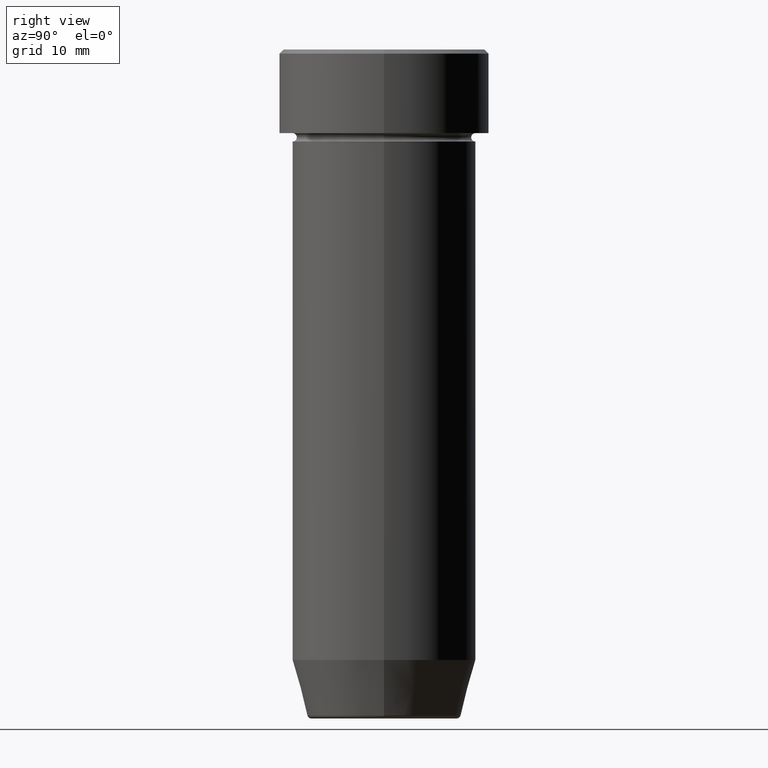
[diagram: clean part render]
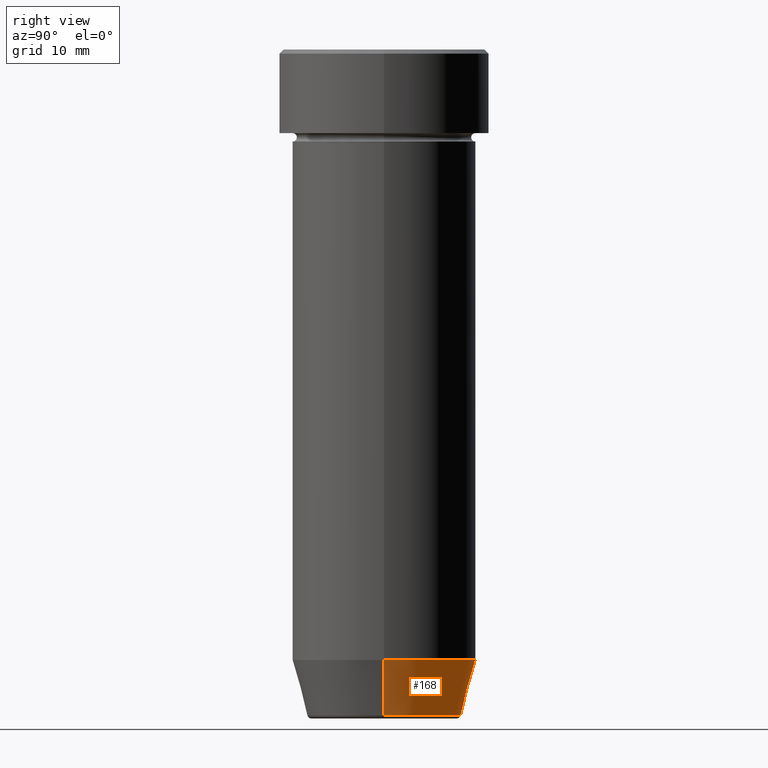
[diagram: same view with one face highlighted and labeled with its STEP entity id]
A machine part, right view. The second image highlights one B-rep face of the part: STEP entity #168.
In plain terms, the highlighted conical surface has half-angle 15 deg.
Its self-contained STEP definition (entity closure, byte-faithful):
#9 = DIRECTION ( 'NONE',  ( -0.000000000000000000, -0.000000000000000000, 1.000000000000000000 ) ) ;
#42 = ORIENTED_EDGE ( 'NONE', *, *, #104, .F. ) ;
#43 = CARTESIAN_POINT ( 'NONE',  ( -9.223655072137194821, 1.238341722557647399E-15, -79.62940952255127058 ) ) ;
#50 = CARTESIAN_POINT ( 'NONE',  ( 11.00000000000000000, 0.000000000000000000, -73.00000000000000000 ) ) ;
#54 = VECTOR ( 'NONE', #555, 1000.000000000000114 ) ;
#56 = DIRECTION ( 'NONE',  ( -0.000000000000000000, -0.000000000000000000, 1.000000000000000000 ) ) ;
#85 = LINE ( 'NONE', #380, #276 ) ;
#104 = EDGE_CURVE ( 'NONE', #459, #546, #194, .T. ) ;
#112 = ORIENTED_EDGE ( 'NONE', *, *, #488, .T. ) ;
#141 = ORIENTED_EDGE ( 'NONE', *, *, #439, .F. ) ;
#154 = CIRCLE ( 'NONE', #492, 9.223655072137194821 ) ;
#155 = EDGE_CURVE ( 'NONE', #459, #549, #154, .T. ) ;
#159 = CONICAL_SURFACE ( 'NONE', #478, 9.124355652982140796, 0.2617993877991491303 ) ;
#168 = ADVANCED_FACE ( 'NONE', ( #384 ), #159, .T. ) ;
#187 = CARTESIAN_POINT ( 'NONE',  ( 9.223655072137194821, 0.000000000000000000, -79.62940952255127058 ) ) ;
#190 = CARTESIAN_POINT ( 'NONE',  ( 0.000000000000000000, 0.000000000000000000, -73.00000000000000000 ) ) ;
#194 = LINE ( 'NONE', #280, #54 ) ;
#239 = DIRECTION ( 'NONE',  ( -1.000000000000000000, 0.000000000000000000, 0.000000000000000000 ) ) ;
#242 = DIRECTION ( 'NONE',  ( 1.000000000000000000, 0.000000000000000000, 0.000000000000000000 ) ) ;
#244 = AXIS2_PLACEMENT_3D ( 'NONE', #190, #9, #501 ) ;
#276 = VECTOR ( 'NONE', #369, 1000.000000000000114 ) ;
#280 = CARTESIAN_POINT ( 'NONE',  ( 9.124355652982140796, 0.000000000000000000, -80.00000000000000000 ) ) ;
#289 = DIRECTION ( 'NONE',  ( -0.000000000000000000, -0.000000000000000000, 1.000000000000000000 ) ) ;
#292 = CARTESIAN_POINT ( 'NONE',  ( 0.000000000000000000, 0.000000000000000000, -80.00000000000000000 ) ) ;
#306 = VERTEX_POINT ( 'NONE', #433 ) ;
#369 = DIRECTION ( 'NONE',  ( -0.2588190451025205174, 3.169619151431761243E-17, 0.9659258262890684232 ) ) ;
#380 = CARTESIAN_POINT ( 'NONE',  ( -9.124355652982140796, 1.117411294470663595E-15, -80.00000000000000000 ) ) ;
#384 = FACE_OUTER_BOUND ( 'NONE', #467, .T. ) ;
#433 = CARTESIAN_POINT ( 'NONE',  ( -11.00000000000000000, 1.347111479062088405E-15, -73.00000000000000000 ) ) ;
#439 = EDGE_CURVE ( 'NONE', #546, #306, #550, .T. ) ;
#459 = VERTEX_POINT ( 'NONE', #187 ) ;
#467 = EDGE_LOOP ( 'NONE', ( #473, #112, #141, #42 ) ) ;
#473 = ORIENTED_EDGE ( 'NONE', *, *, #155, .T. ) ;
#478 = AXIS2_PLACEMENT_3D ( 'NONE', #292, #56, #242 ) ;
#488 = EDGE_CURVE ( 'NONE', #549, #306, #85, .T. ) ;
#492 = AXIS2_PLACEMENT_3D ( 'NONE', #510, #289, #239 ) ;
#501 = DIRECTION ( 'NONE',  ( 1.000000000000000000, 0.000000000000000000, 0.000000000000000000 ) ) ;
#510 = CARTESIAN_POINT ( 'NONE',  ( 0.000000000000000000, 0.000000000000000000, -79.62940952255127058 ) ) ;
#546 = VERTEX_POINT ( 'NONE', #50 ) ;
#549 = VERTEX_POINT ( 'NONE', #43 ) ;
#550 = CIRCLE ( 'NONE', #244, 11.00000000000000000 ) ;
#555 = DIRECTION ( 'NONE',  ( 0.2588190451025205174, 0.000000000000000000, 0.9659258262890684232 ) ) ;